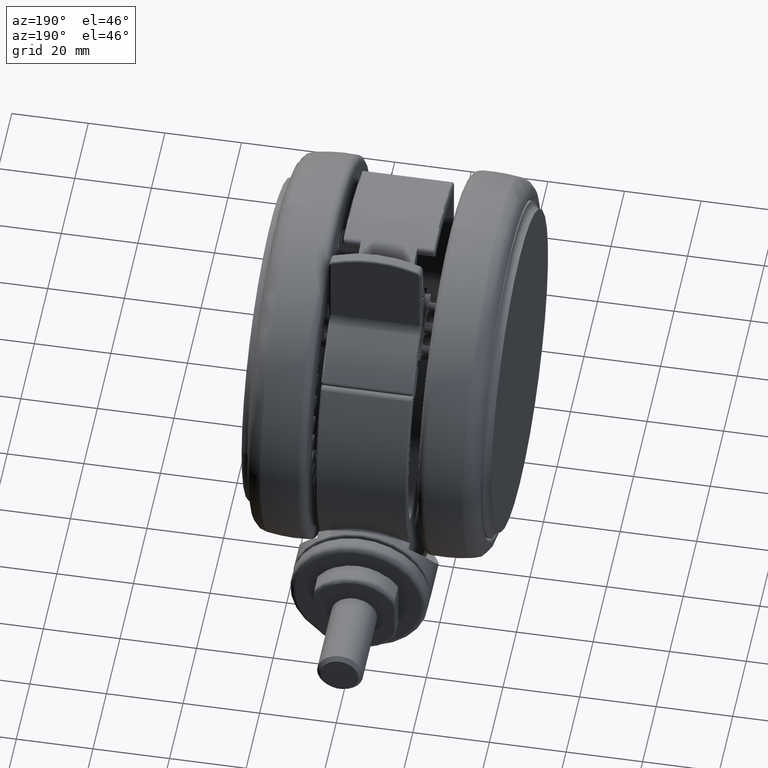
[diagram: clean part render]
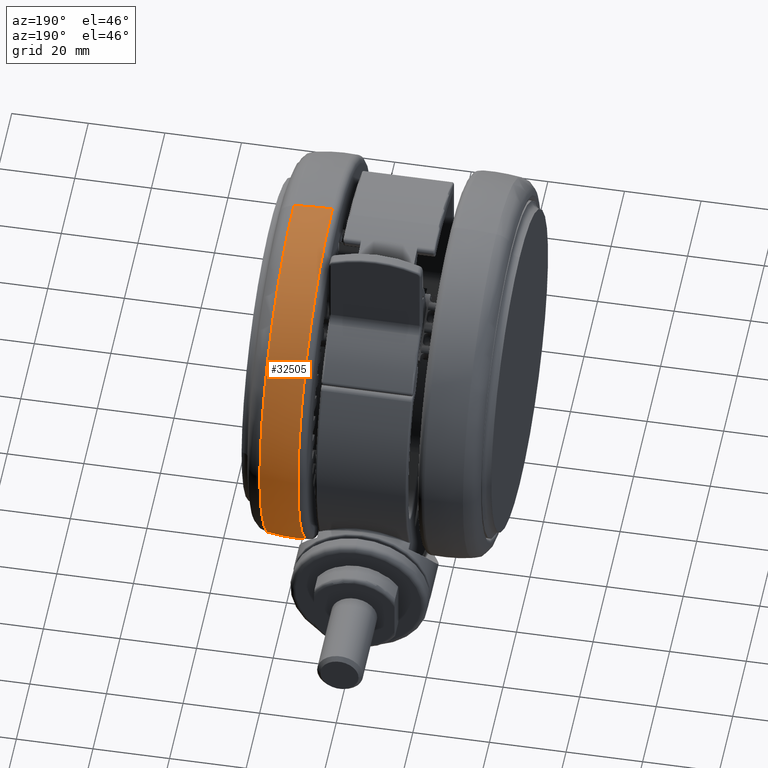
[diagram: same view with one face highlighted and labeled with its STEP entity id]
A machine part, auxiliary view. The second image highlights one B-rep face of the part: STEP entity #32505.
In plain terms, the highlighted toroidal blend (fillet) surface has major radius 36.0786 mm and minor (blend) radius 86.08 mm.
Its self-contained STEP definition (entity closure, byte-faithful):
#1897 = EDGE_CURVE ( 'NONE', #11393, #12871, #2393, .T. ) ;
#2310 = AXIS2_PLACEMENT_3D ( 'NONE', #27567, #71735, #33953 ) ;
#2393 = CIRCLE ( 'NONE', #39704, 49.47234381472849700 ) ;
#7711 = CARTESIAN_POINT ( 'NONE',  ( 1.702981435111045200E-013, -50.00000000000013500, -16.11130803549113100 ) ) ;
#11348 = CIRCLE ( 'NONE', #17120, 86.08000000000001300 ) ;
#11393 = VERTEX_POINT ( 'NONE', #64906 ) ;
#12871 = VERTEX_POINT ( 'NONE', #77807 ) ;
#14541 = ORIENTED_EDGE ( 'NONE', *, *, #21848, .T. ) ;
#15968 = EDGE_CURVE ( 'NONE', #77515, #11393, #72291, .T. ) ;
#17120 = AXIS2_PLACEMENT_3D ( 'NONE', #67201, #29413, #73509 ) ;
#19975 = ORIENTED_EDGE ( 'NONE', *, *, #15968, .F. ) ;
#21848 = EDGE_CURVE ( 'NONE', #52210, #12871, #11348, .T. ) ;
#22700 = EDGE_CURVE ( 'NONE', #77515, #52210, #71485, .T. ) ;
#27216 = FACE_OUTER_BOUND ( 'NONE', #36761, .T. ) ;
#27567 = CARTESIAN_POINT ( 'NONE',  ( -3.469446951953614200E-015, -1.387778780781445700E-013, -16.11130803549113100 ) ) ;
#28185 = CARTESIAN_POINT ( 'NONE',  ( 1.263348217053606100E-013, -36.07862408987045900, -15.62461018795091200 ) ) ;
#29413 = DIRECTION ( 'NONE',  ( -1.000000000000000000, -3.475351809261162800E-015, 0.0000000000000000000 ) ) ;
#30182 = CARTESIAN_POINT ( 'NONE',  ( -3.469446951953614200E-015, -1.387778780781445700E-013, -15.62461018795091200 ) ) ;
#30567 = CARTESIAN_POINT ( 'NONE',  ( -3.469446951953614200E-015, -1.387778780781445700E-013, -6.095796484960088100 ) ) ;
#32505 = ADVANCED_FACE ( 'NONE', ( #27216 ), #43977, .T. ) ;
#33953 = DIRECTION ( 'NONE',  ( -3.597816489175897900E-015, 1.000000000000000000, 0.0000000000000000000 ) ) ;
#34562 = DIRECTION ( 'NONE',  ( -3.597816489175897900E-015, 1.000000000000000000, 0.0000000000000000000 ) ) ;
#36193 = ORIENTED_EDGE ( 'NONE', *, *, #1897, .F. ) ;
#36761 = EDGE_LOOP ( 'NONE', ( #76638, #14541, #36193, #19975 ) ) ;
#36918 = DIRECTION ( 'NONE',  ( -3.597816489175897900E-015, 1.000000000000000000, 0.0000000000000000000 ) ) ;
#39704 = AXIS2_PLACEMENT_3D ( 'NONE', #30567, #74681, #36918 ) ;
#42613 = AXIS2_PLACEMENT_3D ( 'NONE', #28185, #72334, #34562 ) ;
#43977 = TOROIDAL_SURFACE ( 'NONE', #68487, -36.07862408987032400, 86.08000000000001300 ) ;
#49181 = DIRECTION ( 'NONE',  ( 0.0000000000000000000, 0.0000000000000000000, 1.000000000000000000 ) ) ;
#52210 = VERTEX_POINT ( 'NONE', #7711 ) ;
#55529 = DIRECTION ( 'NONE',  ( -3.597816489175897900E-015, 1.000000000000000000, 0.0000000000000000000 ) ) ;
#56906 = CARTESIAN_POINT ( 'NONE',  ( -1.833602714107484800E-013, 49.99999999999985800, -16.11130803549113100 ) ) ;
#64906 = CARTESIAN_POINT ( 'NONE',  ( -1.814618612867629800E-013, 49.47234381472834000, -6.095796484960088100 ) ) ;
#67201 = CARTESIAN_POINT ( 'NONE',  ( -1.288553584583378100E-013, 36.07862408987018200, -15.62461018795091200 ) ) ;
#68487 = AXIS2_PLACEMENT_3D ( 'NONE', #30182, #49181, #55529 ) ;
#71485 = CIRCLE ( 'NONE', #2310, 50.00000000000000000 ) ;
#71735 = DIRECTION ( 'NONE',  ( 0.0000000000000000000, 0.0000000000000000000, 1.000000000000000000 ) ) ;
#72291 = CIRCLE ( 'NONE', #42613, 86.08000000000001300 ) ;
#72334 = DIRECTION ( 'NONE',  ( 1.000000000000000000, 3.597816489175897900E-015, -0.0000000000000000000 ) ) ;
#73509 = DIRECTION ( 'NONE',  ( 3.475351809261163200E-015, -1.000000000000000000, 0.0000000000000000000 ) ) ;
#74681 = DIRECTION ( 'NONE',  ( 0.0000000000000000000, 0.0000000000000000000, 1.000000000000000000 ) ) ;
#76638 = ORIENTED_EDGE ( 'NONE', *, *, #22700, .T. ) ;
#77515 = VERTEX_POINT ( 'NONE', #56906 ) ;
#77807 = CARTESIAN_POINT ( 'NONE',  ( 1.684643526329533100E-013, -49.47234381472861700, -6.095796484960088100 ) ) ;